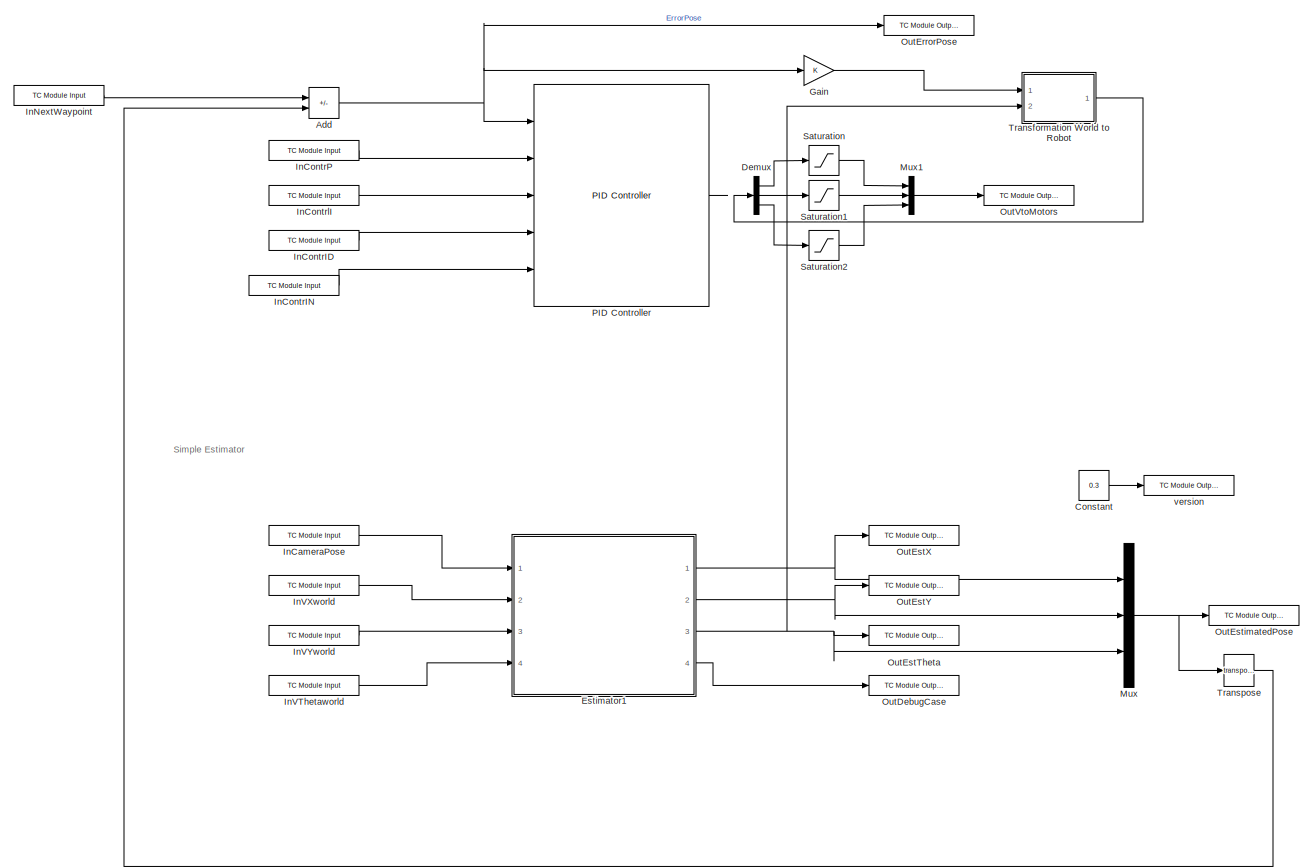
[diagram: root canvas - part 1/2, most of the canvas]
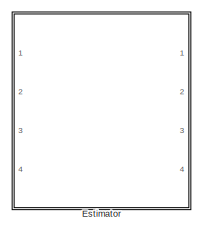
[diagram: root canvas - part 2/2, middle left region]
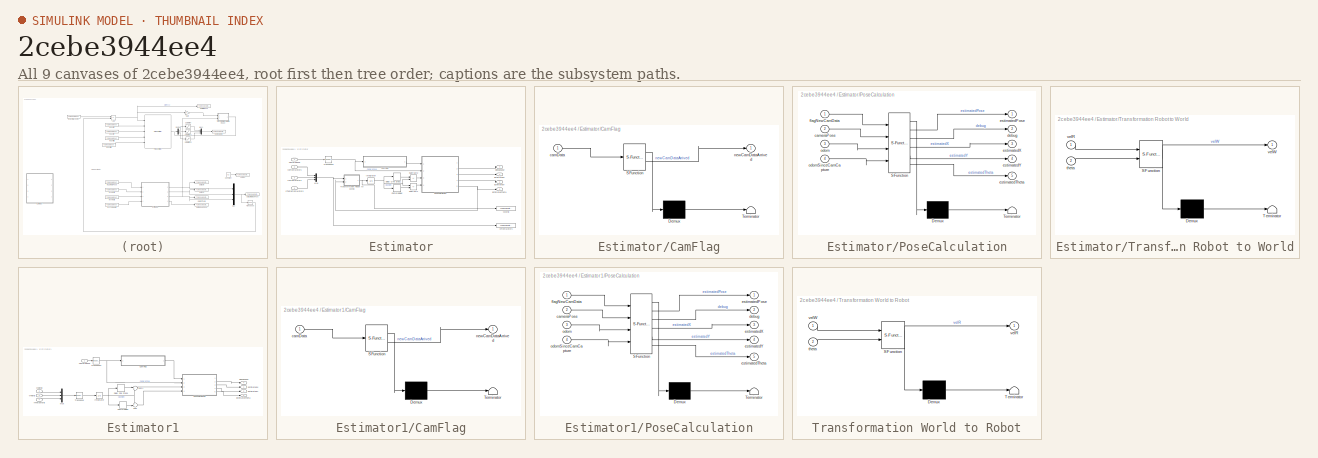
[diagram: thumbnail index - all 9 canvases of the model, root first then tree order]
MODEL slx_2cebe3944ee4
KIND model
CONFIG AbsTol = auto
CONFIG EnableMultiTasking = off
CONFIG FixedStep = 10e-3
CONFIG MaxStep = auto
CONFIG MinStep = auto
CONFIG RelTol = 1e-3
CONFIG SampleTimeConstraint = Unconstrained
CONFIG SolverName = ode1
CONFIG StartTime = 0.0
CONFIG StopTime = inf
BLOCK [Sum] Add
  Commented = on
  IconShape = rectangular
  Inputs = +-
  Ports = [2, 1]
BLOCK [Constant] Constant
  Value = 0.3
BLOCK [Demux] Demux
  Commented = on
  Outputs = 3
  Ports = [1, 3]
BLOCK [SubSystem] Estimator
  Commented = on
  Ports = [4, 4]
  RequestExecContextInheritance = off
BLOCK [SubSystem] Estimator/CamFlag
  ErrorFcn = Stateflow.Translate.translate
  PermitHierarchicalResolution = ExplicitOnly
  Ports = [1, 1]
  RequestExecContextInheritance = off
  SFBlockType = MATLAB Function
  TreatAsAtomicUnit = on
BLOCK [Demux] Estimator/CamFlag/ Demux 
  Outputs = 1
  Ports = [1, 1]
BLOCK [S-Function] Estimator/CamFlag/ SFunction 
  EnableBusSupport = on
  FunctionName = sf_sfun
  PortCounts = [1 2]
  Ports = [1, 2]
  SFcnIsStateOwnerBlock = off
  SFunctionDeploymentMode = off
  Tag = Stateflow S-Function 3
BLOCK [Terminator] Estimator/CamFlag/ Terminator 
BLOCK [Inport] Estimator/CamFlag/camData
BLOCK [Outport] Estimator/CamFlag/newCamDataArrived
BLOCK [Delay] Estimator/CameraDelay
  DelayLength = 14
  InputPortMap = u0
  Ports = [1, 1]
BLOCK [Outport] Estimator/DebugCase
  Port = 4
BLOCK [Delay] Estimator/Delay One Step1
  DelayLength = 1
  InputPortMap = u0
  Ports = [1, 1]
BLOCK [Outport] Estimator/EstimatedTheta
  Port = 3
BLOCK [Outport] Estimator/EstimatedX
BLOCK [Outport] Estimator/EstimatedY
  Port = 2
BLOCK [Integrator] Estimator/Integrator
  Ports = [1, 1]
BLOCK [Inport] Estimator/Kamerapose
BLOCK [Mux] Estimator/Mux
  DisplayOption = bar
  Inputs = 3
  Ports = [3, 1]
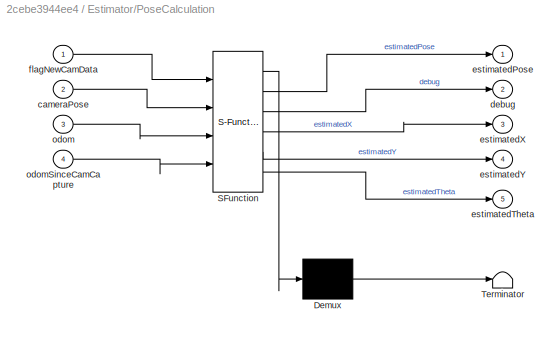
BLOCK [SubSystem] Estimator/PoseCalculation
  ErrorFcn = Stateflow.Translate.translate
  PermitHierarchicalResolution = ExplicitOnly
  Ports = [4, 5]
  RequestExecContextInheritance = off
  SFBlockType = MATLAB Function
  TreatAsAtomicUnit = on
BLOCK [Demux] Estimator/PoseCalculation/ Demux 
  Outputs = 1
  Ports = [1, 1]
BLOCK [S-Function] Estimator/PoseCalculation/ SFunction 
  EnableBusSupport = on
  FunctionName = sf_sfun
  PortCounts = [4 6]
  Ports = [4, 6]
  SFcnIsStateOwnerBlock = off
  SFunctionDeploymentMode = off
  Tag = Stateflow S-Function 1
BLOCK [Terminator] Estimator/PoseCalculation/ Terminator 
BLOCK [Inport] Estimator/PoseCalculation/cameraPose
  Port = 2
BLOCK [Outport] Estimator/PoseCalculation/debug
  Port = 2
BLOCK [Outport] Estimator/PoseCalculation/estimatedPose
BLOCK [Outport] Estimator/PoseCalculation/estimatedTheta
  Port = 5
BLOCK [Outport] Estimator/PoseCalculation/estimatedX
  Port = 3
BLOCK [Outport] Estimator/PoseCalculation/estimatedY
  Port = 4
BLOCK [Inport] Estimator/PoseCalculation/flagNewCamData
BLOCK [Inport] Estimator/PoseCalculation/odom
  Port = 3
BLOCK [Inport] Estimator/PoseCalculation/odomSinceCamCapture
  Port = 4
BLOCK [Sum] Estimator/Subtract1
  IconShape = rectangular
  Inputs = +-
  Ports = [2, 1]
BLOCK [Sum] Estimator/Subtract2
  IconShape = rectangular
  Inputs = -+
  Ports = [2, 1]
BLOCK [SubSystem] Estimator/Transformation Robot to World
  ErrorFcn = Stateflow.Translate.translate
  PermitHierarchicalResolution = ExplicitOnly
  Ports = [2, 1]
  RequestExecContextInheritance = off
  SFBlockType = MATLAB Function
  TreatAsAtomicUnit = on
BLOCK [Demux] Estimator/Transformation Robot to World/ Demux 
  Outputs = 1
  Ports = [1, 1]
BLOCK [S-Function] Estimator/Transformation Robot to World/ SFunction 
  EnableBusSupport = on
  FunctionName = sf_sfun
  PortCounts = [2 2]
  Ports = [2, 2]
  SFcnIsStateOwnerBlock = off
  SFunctionDeploymentMode = off
  Tag = Stateflow S-Function 2
BLOCK [Terminator] Estimator/Transformation Robot to World/ Terminator 
BLOCK [Inport] Estimator/Transformation Robot to World/theta
  Port = 2
BLOCK [Inport] Estimator/Transformation Robot to World/velR
BLOCK [Outport] Estimator/Transformation Robot to World/velW
BLOCK [Math] Estimator/Transpose1
  Operator = transpose
  Ports = [1, 1]
BLOCK [Reference] Estimator/vFromMotors  REF=TcTargetLib/TC Module Output
  Ports = [1]
  SourceBlock = TcTargetLib/TC Module Output
  SourceProductName = Beckhoff TwinCAT Target
  SourceType = TC Module Output
BLOCK [Inport] Estimator/vThetaFromMotors
  Port = 4
BLOCK [Reference] Estimator/vWorld  REF=TcTargetLib/TC Module Output
  Ports = [1]
  SourceBlock = TcTargetLib/TC Module Output
  SourceProductName = Beckhoff TwinCAT Target
  SourceType = TC Module Output
BLOCK [Inport] Estimator/vXFromMotors
  Port = 2
BLOCK [Inport] Estimator/vYFromMotors
  Port = 3
BLOCK [SubSystem] Estimator1
  Ports = [4, 4]
  RequestExecContextInheritance = off
BLOCK [SubSystem] Estimator1/CamFlag
  ErrorFcn = Stateflow.Translate.translate
  PermitHierarchicalResolution = ExplicitOnly
  Ports = [1, 1]
  RequestExecContextInheritance = off
  SFBlockType = MATLAB Function
  TreatAsAtomicUnit = on
BLOCK [Demux] Estimator1/CamFlag/ Demux 
  Outputs = 1
  Ports = [1, 1]
BLOCK [S-Function] Estimator1/CamFlag/ SFunction 
  EnableBusSupport = on
  FunctionName = sf_sfun
  PortCounts = [1 2]
  Ports = [1, 2]
  SFcnIsStateOwnerBlock = off
  SFunctionDeploymentMode = off
  Tag = Stateflow S-Function 4
BLOCK [Terminator] Estimator1/CamFlag/ Terminator 
BLOCK [Inport] Estimator1/CamFlag/camData
BLOCK [Outport] Estimator1/CamFlag/newCamDataArrived
BLOCK [Delay] Estimator1/CameraDelay
  DelayLength = 14
  InputPortMap = u0
  Ports = [1, 1]
BLOCK [Outport] Estimator1/DebugCase
  NameLocation = right
  Port = 4
BLOCK [Delay] Estimator1/Delay One Step1
  DelayLength = 1
  InputPortMap = u0
  Ports = [1, 1]
BLOCK [Outport] Estimator1/EstimatedTheta
  NameLocation = right
  Port = 3
BLOCK [Outport] Estimator1/EstimatedX
  NameLocation = right
BLOCK [Outport] Estimator1/EstimatedY
  NameLocation = right
  Port = 2
BLOCK [Integrator] Estimator1/Integrator
  Ports = [1, 1]
BLOCK [Inport] Estimator1/Kamerapose
BLOCK [Mux] Estimator1/Mux
  DisplayOption = bar
  Inputs = 3
  Ports = [3, 1]
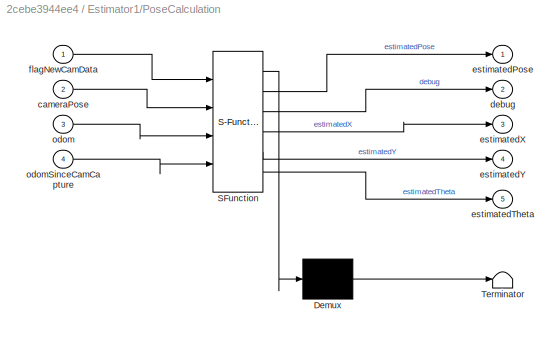
BLOCK [SubSystem] Estimator1/PoseCalculation
  ErrorFcn = Stateflow.Translate.translate
  PermitHierarchicalResolution = ExplicitOnly
  Ports = [4, 5]
  RequestExecContextInheritance = off
  SFBlockType = MATLAB Function
  TreatAsAtomicUnit = on
BLOCK [Demux] Estimator1/PoseCalculation/ Demux 
  Outputs = 1
  Ports = [1, 1]
BLOCK [S-Function] Estimator1/PoseCalculation/ SFunction 
  EnableBusSupport = on
  FunctionName = sf_sfun
  PortCounts = [4 6]
  Ports = [4, 6]
  SFcnIsStateOwnerBlock = off
  SFunctionDeploymentMode = off
  Tag = Stateflow S-Function 5
BLOCK [Terminator] Estimator1/PoseCalculation/ Terminator 
BLOCK [Inport] Estimator1/PoseCalculation/cameraPose
  Port = 2
BLOCK [Outport] Estimator1/PoseCalculation/debug
  Port = 2
BLOCK [Outport] Estimator1/PoseCalculation/estimatedPose
BLOCK [Outport] Estimator1/PoseCalculation/estimatedTheta
  Port = 5
BLOCK [Outport] Estimator1/PoseCalculation/estimatedX
  Port = 3
BLOCK [Outport] Estimator1/PoseCalculation/estimatedY
  Port = 4
BLOCK [Inport] Estimator1/PoseCalculation/flagNewCamData
BLOCK [Inport] Estimator1/PoseCalculation/odom
  Port = 3
BLOCK [Inport] Estimator1/PoseCalculation/odomSinceCamCapture
  Port = 4
BLOCK [Sum] Estimator1/Sum
  Inputs = +-|
  Ports = [2, 1]
BLOCK [Sum] Estimator1/Sum1
  Inputs = |+-
  Ports = [2, 1]
BLOCK [Math] Estimator1/Transpose
  Operator = transpose
  Ports = [1, 1]
BLOCK [Math] Estimator1/Transpose1
  Operator = transpose
  Ports = [1, 1]
BLOCK [Inport] Estimator1/vThetaWorld
  NameLocation = left
  Port = 4
BLOCK [Inport] Estimator1/vXworld
  NameLocation = left
  Port = 2
BLOCK [Inport] Estimator1/vYworld
  NameLocation = left
  Port = 3
BLOCK [Gain] Gain
  Commented = on
BLOCK [Reference] InCameraPose  REF=TcTargetLib/TC Module Input
  Ports = [0, 1]
  SourceBlock = TcTargetLib/TC Module Input
  SourceProductName = Beckhoff TwinCAT Target
  SourceType = TC Module Input
BLOCK [Reference] InContrID  REF=TcTargetLib/TC Module Input
  Commented = on
  Ports = [0, 1]
  SourceBlock = TcTargetLib/TC Module Input
  SourceProductName = Beckhoff TwinCAT Target
  SourceType = TC Module Input
BLOCK [Reference] InContrIN  REF=TcTargetLib/TC Module Input
  Commented = on
  Ports = [0, 1]
  SourceBlock = TcTargetLib/TC Module Input
  SourceProductName = Beckhoff TwinCAT Target
  SourceType = TC Module Input
BLOCK [Reference] InContrP  REF=TcTargetLib/TC Module Input
  Commented = on
  Ports = [0, 1]
  SourceBlock = TcTargetLib/TC Module Input
  SourceProductName = Beckhoff TwinCAT Target
  SourceType = TC Module Input
BLOCK [Reference] InContrlI  REF=TcTargetLib/TC Module Input
  Commented = on
  Ports = [0, 1]
  SourceBlock = TcTargetLib/TC Module Input
  SourceProductName = Beckhoff TwinCAT Target
  SourceType = TC Module Input
BLOCK [Reference] InNextWaypoint  REF=TcTargetLib/TC Module Input
  Commented = on
  Ports = [0, 1]
  SourceBlock = TcTargetLib/TC Module Input
  SourceProductName = Beckhoff TwinCAT Target
  SourceType = TC Module Input
BLOCK [Reference] InVThetaworld  REF=TcTargetLib/TC Module Input
  Ports = [0, 1]
  SourceBlock = TcTargetLib/TC Module Input
  SourceProductName = Beckhoff TwinCAT Target
  SourceType = TC Module Input
BLOCK [Reference] InVXworld  REF=TcTargetLib/TC Module Input
  Ports = [0, 1]
  SourceBlock = TcTargetLib/TC Module Input
  SourceProductName = Beckhoff TwinCAT Target
  SourceType = TC Module Input
BLOCK [Reference] InVYworld  REF=TcTargetLib/TC Module Input
  Ports = [0, 1]
  SourceBlock = TcTargetLib/TC Module Input
  SourceProductName = Beckhoff TwinCAT Target
  SourceType = TC Module Input
BLOCK [Mux] Mux
  DisplayOption = bar
  Inputs = 3
  Ports = [3, 1]
BLOCK [Mux] Mux1
  Commented = on
  DisplayOption = bar
  Inputs = 3
  Ports = [3, 1]
BLOCK [Reference] OutDebugCase  REF=TcTargetLib/TC Module Output
  Ports = [1]
  SourceBlock = TcTargetLib/TC Module Output
  SourceProductName = Beckhoff TwinCAT Target
  SourceType = TC Module Output
BLOCK [Reference] OutErrorPose  REF=TcTargetLib/TC Module Output
  Commented = on
  Ports = [1]
  SourceBlock = TcTargetLib/TC Module Output
  SourceProductName = Beckhoff TwinCAT Target
  SourceType = TC Module Output
BLOCK [Reference] OutEstTheta  REF=TcTargetLib/TC Module Output
  Ports = [1]
  SourceBlock = TcTargetLib/TC Module Output
  SourceProductName = Beckhoff TwinCAT Target
  SourceType = TC Module Output
BLOCK [Reference] OutEstX  REF=TcTargetLib/TC Module Output
  Ports = [1]
  SourceBlock = TcTargetLib/TC Module Output
  SourceProductName = Beckhoff TwinCAT Target
  SourceType = TC Module Output
BLOCK [Reference] OutEstY  REF=TcTargetLib/TC Module Output
  Ports = [1]
  SourceBlock = TcTargetLib/TC Module Output
  SourceProductName = Beckhoff TwinCAT Target
  SourceType = TC Module Output
BLOCK [Reference] OutEstimatedPose  REF=TcTargetLib/TC Module Output
  Ports = [1]
  SourceBlock = TcTargetLib/TC Module Output
  SourceProductName = Beckhoff TwinCAT Target
  SourceType = TC Module Output
BLOCK [Reference] OutVtoMotors  REF=TcTargetLib/TC Module Output
  Commented = on
  Ports = [1]
  SourceBlock = TcTargetLib/TC Module Output
  SourceProductName = Beckhoff TwinCAT Target
  SourceType = TC Module Output
BLOCK [Reference] PID Controller  REF=slpidlib/PID Controller
  Commented = on
  Ports = [5, 1]
  SourceBlock = slpidlib/PID Controller
  SourceProductBaseCode = SL
  SourceType = PID 1dof
BLOCK [Saturate] Saturation
  Commented = on
  LowerLimit = -500
  UpperLimit = 500
BLOCK [Saturate] Saturation1
  Commented = on
  LowerLimit = -500
  UpperLimit = 500
BLOCK [Saturate] Saturation2
  Commented = on
  LowerLimit = -1
  UpperLimit = 1
BLOCK [SubSystem] Transformation World to Robot
  Commented = on
  ErrorFcn = Stateflow.Translate.translate
  PermitHierarchicalResolution = ExplicitOnly
  Ports = [2, 1]
  RequestExecContextInheritance = off
  SFBlockType = MATLAB Function
  TreatAsAtomicUnit = on
BLOCK [Demux] Transformation World to Robot/ Demux 
  Outputs = 1
  Ports = [1, 1]
BLOCK [S-Function] Transformation World to Robot/ SFunction 
  EnableBusSupport = on
  FunctionName = sf_sfun
  PortCounts = [2 2]
  Ports = [2, 2]
  SFcnIsStateOwnerBlock = off
  SFunctionDeploymentMode = off
  Tag = Stateflow S-Function 7
BLOCK [Terminator] Transformation World to Robot/ Terminator 
BLOCK [Inport] Transformation World to Robot/theta
  Port = 2
BLOCK [Outport] Transformation World to Robot/velR
BLOCK [Inport] Transformation World to Robot/velW
BLOCK [Math] Transpose
  Commented = on
  Operator = transpose
  Ports = [1, 1]
BLOCK [Reference] version  REF=TcTargetLib/TC Module Output
  Ports = [1]
  SourceBlock = TcTargetLib/TC Module Output
  SourceProductName = Beckhoff TwinCAT Target
  SourceType = TC Module Output
ANNOTATION (root): Simple Estimator
NET Add:1 -> Gain:1, OutErrorPose:1, PID Controller:1
LINE Constant:1 -> version:1
LINE Demux:1 -> Saturation:1
LINE Demux:2 -> Saturation1:1
LINE Demux:3 -> Saturation2:1
LINE Estimator/CamFlag:1 -> Estimator/PoseCalculation:1
LINE Estimator/CameraDelay:1 -> Estimator/Subtract1:2
LINE Estimator/Delay One Step1:1 -> Estimator/Subtract2:1
NET Estimator/Integrator:1 -> Estimator/CameraDelay:1, Estimator/Delay One Step1:1, Estimator/Subtract1:1, Estimator/Subtract2:2
LINE Estimator/Kamerapose:1 -> Estimator/Transpose1:1
NET Estimator/Mux:1 -> Estimator/Transformation Robot to World:1, Estimator/vFromMotors:1
LINE Estimator/PoseCalculation:2 -> Estimator/DebugCase:1
LINE Estimator/PoseCalculation:3 -> Estimator/EstimatedX:1
LINE Estimator/PoseCalculation:4 -> Estimator/EstimatedY:1
NET Estimator/PoseCalculation:5 -> Estimator/EstimatedTheta:1, Estimator/Transformation Robot to World:2
LINE Estimator/Subtract1:1 -> Estimator/PoseCalculation:4
LINE Estimator/Subtract2:1 -> Estimator/PoseCalculation:3
NET Estimator/Transformation Robot to World:1 -> Estimator/Integrator:1, Estimator/vWorld:1
NET Estimator/Transpose1:1 -> Estimator/CamFlag:1, Estimator/PoseCalculation:2
LINE Estimator/vThetaFromMotors:1 -> Estimator/Mux:3
LINE Estimator/vXFromMotors:1 -> Estimator/Mux:1
LINE Estimator/vYFromMotors:1 -> Estimator/Mux:2
LINE Estimator1/CamFlag:1 -> Estimator1/PoseCalculation:1
LINE Estimator1/CameraDelay:1 -> Estimator1/Sum:2
LINE Estimator1/Delay One Step1:1 -> Estimator1/Sum1:1
NET Estimator1/Integrator:1 -> Estimator1/CameraDelay:1, Estimator1/Delay One Step1:1, Estimator1/Sum1:2, Estimator1/Sum:1
LINE Estimator1/Kamerapose:1 -> Estimator1/Transpose1:1
LINE Estimator1/Mux:1 -> Estimator1/Transpose:1
LINE Estimator1/PoseCalculation:2 -> Estimator1/DebugCase:1
LINE Estimator1/PoseCalculation:3 -> Estimator1/EstimatedX:1
LINE Estimator1/PoseCalculation:4 -> Estimator1/EstimatedY:1
LINE Estimator1/PoseCalculation:5 -> Estimator1/EstimatedTheta:1
LINE Estimator1/Sum1:1 -> Estimator1/PoseCalculation:3
LINE Estimator1/Sum:1 -> Estimator1/PoseCalculation:4
NET Estimator1/Transpose1:1 -> Estimator1/CamFlag:1, Estimator1/PoseCalculation:2
LINE Estimator1/Transpose:1 -> Estimator1/Integrator:1
LINE Estimator1/vThetaWorld:1 -> Estimator1/Mux:3
LINE Estimator1/vXworld:1 -> Estimator1/Mux:1
LINE Estimator1/vYworld:1 -> Estimator1/Mux:2
NET Estimator1:1 -> Mux:1, OutEstX:1
NET Estimator1:2 -> Mux:2, OutEstY:1
NET Estimator1:3 -> Mux:3, OutEstTheta:1, Transformation World to Robot:2
LINE Estimator1:4 -> OutDebugCase:1
LINE Gain:1 -> Transformation World to Robot:1
LINE InCameraPose:1 -> Estimator1:1
LINE InContrID:1 -> PID Controller:4
LINE InContrIN:1 -> PID Controller:5
LINE InContrP:1 -> PID Controller:2
LINE InContrlI:1 -> PID Controller:3
LINE InNextWaypoint:1 -> Add:1
LINE InVThetaworld:1 -> Estimator1:4
LINE InVXworld:1 -> Estimator1:2
LINE InVYworld:1 -> Estimator1:3
LINE Mux1:1 -> OutVtoMotors:1
NET Mux:1 -> OutEstimatedPose:1, Transpose:1
LINE Saturation1:1 -> Mux1:2
LINE Saturation2:1 -> Mux1:3
LINE Saturation:1 -> Mux1:1
LINE Transformation World to Robot:1 -> Demux:1
LINE Transpose:1 -> Add:2
note: NET lines group one-source signal fan-out (src -> all destinations, sorted); 1:1 wires keep LINE
CHART Estimator/PoseCalculation states=1 transitions=1
  STATE_LABEL 'eML_blk_kernel()'
  STATE_LABEL 'SCRIPT:\nfunction [estimatedPose, debug, estimatedX, estimatedY, estimatedTheta]= fcn(flagNewCamData, cameraPose, odom, odomSinceCamCapture)\n\n% Variables\npersistent estPoseOld\n\nif isempty(estPoseOld)\n    estPoseOld = [0 0 0];\nend\n\n    % Case 1: Camera Flag is set (New Cameradata) and CameraData is valid\nif flagNewCamData == 1\n    estimatedPose = cameraPose(1:3) + odomSinceCamCapture;   %OdomSinceCa...<+507ch>'
CHART Estimator/Transformation Robot to World states=1 transitions=1
  STATE_LABEL 'eML_blk_kernel()'
  STATE_LABEL 'SCRIPT:\nfunction velW = fcn(velR, theta)\n    TMat = [cos(theta)    -sin(theta)   0;\n            sin(theta)    cos(theta)    0;\n            0             0             1];\n    velW = TMat*velR;\nend'
CHART Estimator/CamFlag states=1 transitions=1
  STATE_LABEL 'eML_blk_kernel()'
  STATE_LABEL 'SCRIPT:\nfunction newCamDataArrived = fcn(camData)\n\npersistent oldCamData\n\nif isempty(oldCamData)\n    oldCamData = [0 0 0];\nend\n\nif camData ~= oldCamData\n    newCamDataArrived = true;\nelse\n    newCamDataArrived = false;\n    oldCamData = camData;\nend\n'
CHART Estimator1/CamFlag states=1 transitions=1
  STATE_LABEL 'eML_blk_kernel()'
  STATE_LABEL 'SCRIPT:\nfunction newCamDataArrived = fcn(camData)\n\npersistent oldCamData\n\nif isempty(oldCamData)\n    oldCamData = [0 0 0];\nend\n\nif camData ~= oldCamData\n    newCamDataArrived = true;\nelse\n    newCamDataArrived = false;\n    oldCamData = camData;\nend\n'
CHART Estimator1/PoseCalculation states=1 transitions=1
  STATE_LABEL 'eML_blk_kernel()'
  STATE_LABEL 'SCRIPT:\nfunction [estimatedPose, debug, estimatedX, estimatedY, estimatedTheta]= fcn(flagNewCamData, cameraPose, odom, odomSinceCamCapture)\n\n% Variables\npersistent estPoseOld\n\nif isempty(estPoseOld)\n    estPoseOld = [0 0 0];\nend\n\n    % Case 1: Camera Flag is set (New Cameradata) and CameraData is valid\nif flagNewCamData == 1\n    estimatedPose = cameraPose(1:3) + odomSinceCamCapture;   %OdomSinceCa...<+507ch>'
CHART Transformation World to Robot states=1 transitions=1
  STATE_LABEL 'eML_blk_kernel()'
  STATE_LABEL 'SCRIPT:\nfunction velR = fcn(velW, theta)\n    TMat = [cos(theta)     sin(theta)    0;\n            -sin(theta)    cos(theta)    0;\n            0              0             1];\n    velR = TMat*velW;\nend'
CHART  states=0 transitions=0
CHART  states=0 transitions=0
CHART  states=0 transitions=0
CHART  states=0 transitions=0
CHART  states=0 transitions=0
CHART  states=0 transitions=0
